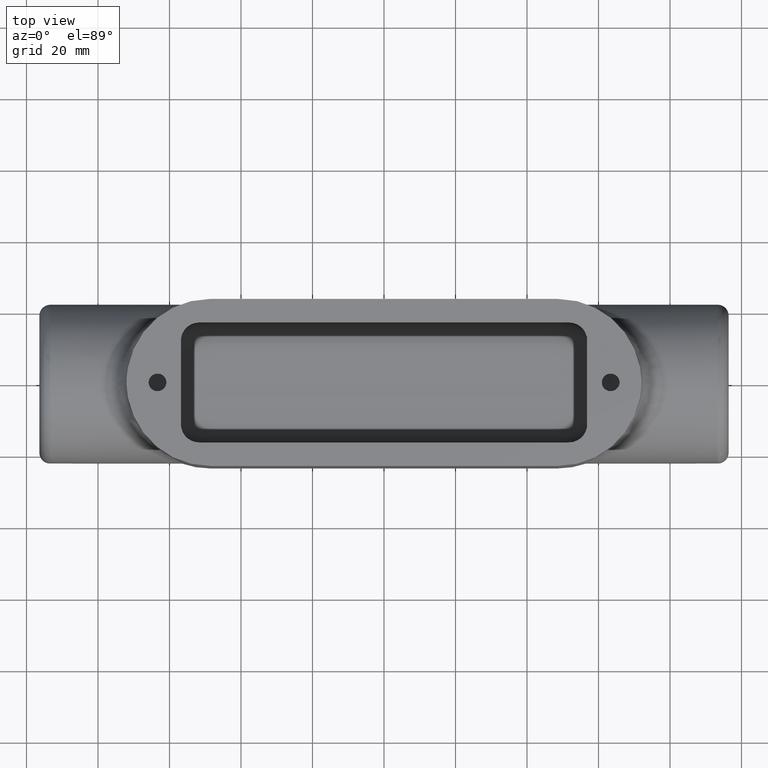
[diagram: clean part render]
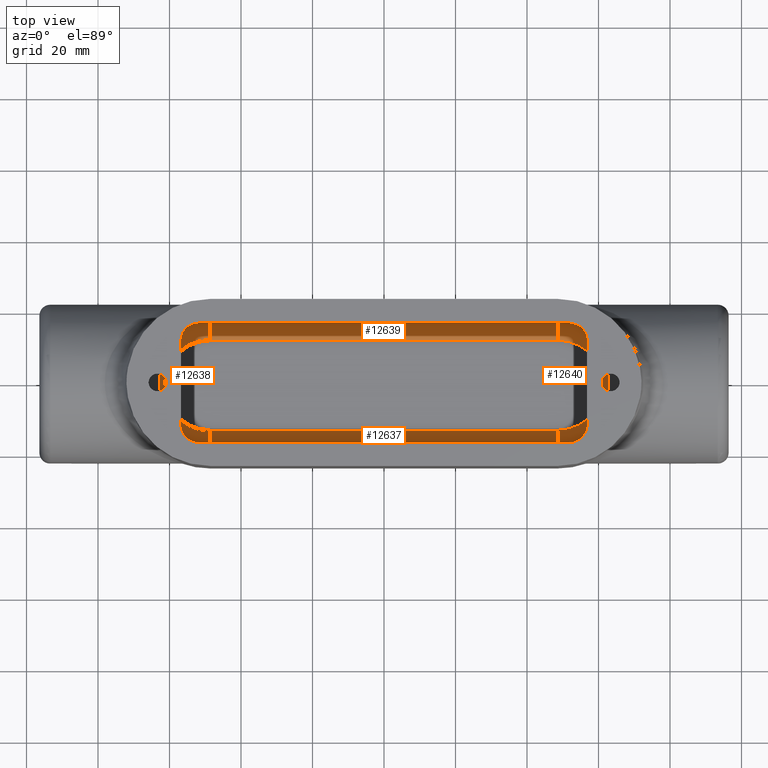
[diagram: same view with one multi-face feature highlighted, each face labeled with its STEP entity id]
A machine part, top view. The highlighted faces form ONE feature: a constant-radius fillet chain: 4 tangent blend faces with common blend radius 5.08 mm. The faces share edges in the B-rep.
Their STEP definitions:
[1] entity #12639 (Cylinder):
#449=LINE('',#18269,#1676);
#450=LINE('',#18270,#1677);
#1676=VECTOR('',#14105,0.393700787401575);
#1677=VECTOR('',#14106,0.393700787401575);
#4405=FACE_OUTER_BOUND('',#5105,.T.);
#5105=EDGE_LOOP('',(#9162,#9163,#9164,#9165));
#5886=CIRCLE('',#13398,0.2);
#5887=CIRCLE('',#13400,0.2);
#6002=VERTEX_POINT('',#17892);
#6017=VERTEX_POINT('',#18249);
#6020=VERTEX_POINT('',#18263);
#6021=VERTEX_POINT('',#18267);
#7266=EDGE_CURVE('',#6020,#6002,#5886,.T.);
#7267=EDGE_CURVE('',#6021,#6017,#5887,.T.);
#7268=EDGE_CURVE('',#6017,#6002,#449,.T.);
#7269=EDGE_CURVE('',#6020,#6021,#450,.T.);
#9162=ORIENTED_EDGE('',*,*,#7267,.T.);
#9163=ORIENTED_EDGE('',*,*,#7268,.T.);
#9164=ORIENTED_EDGE('',*,*,#7266,.F.);
#9165=ORIENTED_EDGE('',*,*,#7269,.T.);
#12563=CYLINDRICAL_SURFACE('',#13399,0.2);
#12639=ADVANCED_FACE('',(#4405),#12563,.F.);
#13398=AXIS2_PLACEMENT_3D('',#18265,#14099,#14100);
#13399=AXIS2_PLACEMENT_3D('',#18266,#14101,#14102);
#13400=AXIS2_PLACEMENT_3D('',#18268,#14103,#14104);
#14099=DIRECTION('center_axis',(1.,0.,0.));
#14100=DIRECTION('ref_axis',(0.,0.,-1.));
#14101=DIRECTION('center_axis',(1.,0.,0.));
#14102=DIRECTION('ref_axis',(0.,0.707106781186547,-0.707106781186547));
#14103=DIRECTION('center_axis',(1.,0.,0.));
#14104=DIRECTION('ref_axis',(0.,0.,-1.));
#14105=DIRECTION('',(-1.,0.,0.));
#14106=DIRECTION('',(1.,0.,0.));
#17892=CARTESIAN_POINT('',(-1.915,0.696,-0.560999999999999));
#18249=CARTESIAN_POINT('',(1.915,0.696,-0.560999999999999));
#18263=CARTESIAN_POINT('',(-1.915,0.496,-0.761));
#18265=CARTESIAN_POINT('Origin',(-1.915,0.496,-0.560999999999999));
#18266=CARTESIAN_POINT('Origin',(-0.9575,0.496,-0.560999999999999));
#18267=CARTESIAN_POINT('',(1.915,0.496,-0.761));
#18268=CARTESIAN_POINT('Origin',(1.915,0.496,-0.560999999999999));
#18269=CARTESIAN_POINT('',(-0.9575,0.696,-0.560999999999999));
#18270=CARTESIAN_POINT('',(-0.9575,0.496,-0.761));
[2] entity #12638 (Torus):
#433=TOROIDAL_SURFACE('',#13396,0.496,0.2);
#2920=B_SPLINE_CURVE_WITH_KNOTS('',3,(#17703,#17704,#17705,#17706,#17707,
#17708,#17709,#17710,#17711,#17712,#17713,#17714,#17715,#17716),
 .UNSPECIFIED.,.F.,.F.,(4,1,1,1,1,1,1,1,1,1,1,4),(0.,0.533242438808923,
1.06648487761785,1.33310609702231,1.59972731642677,1.86634853583123,2.13296975523569,
2.26628036493792,2.39959097464015,2.66621219404461,3.19945463285354,3.73269707166246),
 .UNSPECIFIED.);
#4404=FACE_OUTER_BOUND('',#5104,.T.);
#5104=EDGE_LOOP('',(#9156,#9157,#9158,#9159,#9160,#9161));
#5872=CIRCLE('',#13379,0.696);
#5874=CIRCLE('',#13381,0.696);
#5884=CIRCLE('',#13395,0.2);
#5885=CIRCLE('',#13397,0.496);
#5886=CIRCLE('',#13398,0.2);
#5995=VERTEX_POINT('',#17603);
#5999=VERTEX_POINT('',#17701);
#6002=VERTEX_POINT('',#17892);
#6005=VERTEX_POINT('',#17898);
#6019=VERTEX_POINT('',#18258);
#6020=VERTEX_POINT('',#18263);
#7231=EDGE_CURVE('',#5999,#5995,#2920,.T.);
#7238=EDGE_CURVE('',#6002,#5995,#5872,.T.);
#7242=EDGE_CURVE('',#5999,#6005,#5874,.T.);
#7263=EDGE_CURVE('',#6019,#6005,#5884,.T.);
#7265=EDGE_CURVE('',#6019,#6020,#5885,.T.);
#7266=EDGE_CURVE('',#6020,#6002,#5886,.T.);
#9156=ORIENTED_EDGE('',*,*,#7231,.F.);
#9157=ORIENTED_EDGE('',*,*,#7242,.T.);
#9158=ORIENTED_EDGE('',*,*,#7263,.F.);
#9159=ORIENTED_EDGE('',*,*,#7265,.T.);
#9160=ORIENTED_EDGE('',*,*,#7266,.T.);
#9161=ORIENTED_EDGE('',*,*,#7238,.T.);
#12638=ADVANCED_FACE('',(#4404),#433,.F.);
#13379=AXIS2_PLACEMENT_3D('',#17893,#14055,#14056);
#13381=AXIS2_PLACEMENT_3D('',#17900,#14061,#14062);
#13395=AXIS2_PLACEMENT_3D('',#18260,#14092,#14093);
#13396=AXIS2_PLACEMENT_3D('',#18262,#14095,#14096);
#13397=AXIS2_PLACEMENT_3D('',#18264,#14097,#14098);
#13398=AXIS2_PLACEMENT_3D('',#18265,#14099,#14100);
#14055=DIRECTION('center_axis',(0.,0.,1.));
#14056=DIRECTION('ref_axis',(-1.,-6.12323399573676E-17,0.));
#14061=DIRECTION('center_axis',(0.,0.,1.));
#14062=DIRECTION('ref_axis',(-1.,-6.12323399573676E-17,0.));
#14092=DIRECTION('center_axis',(-1.,0.,0.));
#14093=DIRECTION('ref_axis',(0.,0.,-1.));
#14095=DIRECTION('center_axis',(0.,0.,-1.));
#14096=DIRECTION('ref_axis',(-1.,0.,0.));
#14097=DIRECTION('center_axis',(0.,0.,-1.));
#14098=DIRECTION('ref_axis',(-1.,-6.12323399573677E-17,0.));
#14099=DIRECTION('center_axis',(1.,0.,0.));
#14100=DIRECTION('ref_axis',(0.,0.,-1.));
#17603=CARTESIAN_POINT('',(-2.37802879036096,0.519634813399629,-0.561));
#17701=CARTESIAN_POINT('',(-2.37802879036096,-0.519634813399629,-0.560999999999999));
#17703=CARTESIAN_POINT('Ctrl Pts',(-2.37802879036096,-0.519634813399629,
-0.561));
#17704=CARTESIAN_POINT('Ctrl Pts',(-2.41088238456691,-0.490360100482168,
-0.589882102970667));
#17705=CARTESIAN_POINT('Ctrl Pts',(-2.45986789857735,-0.417945291386486,
-0.650243062807991));
#17706=CARTESIAN_POINT('Ctrl Pts',(-2.48205498004786,-0.29660152173227,
-0.70754809269978));
#17707=CARTESIAN_POINT('Ctrl Pts',(-2.48199728167638,-0.186332067024363,
-0.73591375272042));
#17708=CARTESIAN_POINT('Ctrl Pts',(-2.47525823907331,-0.0978157329645878,
-0.748795140693938));
#17709=CARTESIAN_POINT('Ctrl Pts',(-2.46893896594453,-4.95900863676302E-5,
-0.753264456764752));
#17710=CARTESIAN_POINT('Ctrl Pts',(-2.47418477519518,0.0816297493786973,
-0.749529662604767));
#17711=CARTESIAN_POINT('Ctrl Pts',(-2.47872028788092,0.141913927287905,
-0.742359489911783));
#17712=CARTESIAN_POINT('Ctrl Pts',(-2.48198389178379,0.200228362492412,
-0.732354893643174));
#17713=CARTESIAN_POINT('Ctrl Pts',(-2.48211764840845,0.296479597601843,
-0.707496339808036));
#17714=CARTESIAN_POINT('Ctrl Pts',(-2.45986228779177,0.417998154131901,
-0.650330970604331));
#17715=CARTESIAN_POINT('Ctrl Pts',(-2.41088238456691,0.490360100482169,
-0.589882102970667));
#17716=CARTESIAN_POINT('Ctrl Pts',(-2.37802879036096,0.519634813399629,
-0.561));
#17892=CARTESIAN_POINT('',(-1.915,0.696,-0.560999999999999));
#17893=CARTESIAN_POINT('Origin',(-1.915,0.,-0.560999999999999));
#17898=CARTESIAN_POINT('',(-1.915,-0.696,-0.560999999999999));
#17900=CARTESIAN_POINT('Origin',(-1.915,0.,-0.560999999999999));
#18258=CARTESIAN_POINT('',(-1.915,-0.496,-0.761));
#18260=CARTESIAN_POINT('Origin',(-1.915,-0.496,-0.560999999999999));
#18262=CARTESIAN_POINT('Origin',(-1.915,0.,-0.560999999999999));
#18263=CARTESIAN_POINT('',(-1.915,0.496,-0.761));
#18264=CARTESIAN_POINT('Origin',(-1.915,0.,-0.761));
#18265=CARTESIAN_POINT('Origin',(-1.915,0.496,-0.560999999999999));
[3] entity #12637 (Cylinder):
#447=LINE('',#18259,#1674);
#448=LINE('',#18261,#1675);
#1674=VECTOR('',#14091,0.393700787401575);
#1675=VECTOR('',#14094,0.393700787401575);
#4403=FACE_OUTER_BOUND('',#5103,.T.);
#5103=EDGE_LOOP('',(#9152,#9153,#9154,#9155));
#5883=CIRCLE('',#13394,0.2);
#5884=CIRCLE('',#13395,0.2);
#6005=VERTEX_POINT('',#17898);
#6014=VERTEX_POINT('',#18243);
#6018=VERTEX_POINT('',#18256);
#6019=VERTEX_POINT('',#18258);
#7261=EDGE_CURVE('',#6014,#6018,#5883,.T.);
#7262=EDGE_CURVE('',#6018,#6019,#447,.T.);
#7263=EDGE_CURVE('',#6019,#6005,#5884,.T.);
#7264=EDGE_CURVE('',#6005,#6014,#448,.T.);
#9152=ORIENTED_EDGE('',*,*,#7261,.T.);
#9153=ORIENTED_EDGE('',*,*,#7262,.T.);
#9154=ORIENTED_EDGE('',*,*,#7263,.T.);
#9155=ORIENTED_EDGE('',*,*,#7264,.T.);
#12562=CYLINDRICAL_SURFACE('',#13393,0.2);
#12637=ADVANCED_FACE('',(#4403),#12562,.F.);
#13393=AXIS2_PLACEMENT_3D('',#18255,#14087,#14088);
#13394=AXIS2_PLACEMENT_3D('',#18257,#14089,#14090);
#13395=AXIS2_PLACEMENT_3D('',#18260,#14092,#14093);
#14087=DIRECTION('center_axis',(-1.,0.,0.));
#14088=DIRECTION('ref_axis',(0.,-0.707106781186547,-0.707106781186547));
#14089=DIRECTION('center_axis',(1.,0.,0.));
#14090=DIRECTION('ref_axis',(0.,-1.,0.));
#14091=DIRECTION('',(-1.,0.,0.));
#14092=DIRECTION('center_axis',(-1.,0.,0.));
#14093=DIRECTION('ref_axis',(0.,0.,-1.));
#14094=DIRECTION('',(1.,0.,0.));
#17898=CARTESIAN_POINT('',(-1.915,-0.696,-0.560999999999999));
#18243=CARTESIAN_POINT('',(1.915,-0.696,-0.560999999999999));
#18255=CARTESIAN_POINT('Origin',(0.9575,-0.496,-0.560999999999999));
#18256=CARTESIAN_POINT('',(1.915,-0.496,-0.761));
#18257=CARTESIAN_POINT('Origin',(1.915,-0.496,-0.560999999999999));
#18258=CARTESIAN_POINT('',(-1.915,-0.496,-0.761));
#18259=CARTESIAN_POINT('',(0.9575,-0.496,-0.761));
#18260=CARTESIAN_POINT('Origin',(-1.915,-0.496,-0.560999999999999));
#18261=CARTESIAN_POINT('',(0.9575,-0.696,-0.560999999999999));
[4] entity #12640 (Torus):
#434=TOROIDAL_SURFACE('',#13401,0.496,0.2);
#2928=B_SPLINE_CURVE_WITH_KNOTS('',3,(#18064,#18065,#18066,#18067,#18068,
#18069,#18070,#18071,#18072,#18073,#18074,#18075,#18076,#18077),
 .UNSPECIFIED.,.F.,.F.,(4,1,1,1,1,1,1,1,1,1,1,4),(0.,0.533242438808923,
1.06648487761785,1.33310609702231,1.46641670672454,1.59972731642677,1.86634853583123,
1.99965914553346,2.13296975523569,2.66621219404462,3.19945463285354,3.73269707166246),
 .UNSPECIFIED.);
#4406=FACE_OUTER_BOUND('',#5106,.T.);
#5106=EDGE_LOOP('',(#9166,#9167,#9168,#9169,#9170,#9171));
#5879=CIRCLE('',#13387,0.696);
#5881=CIRCLE('',#13389,0.696);
#5883=CIRCLE('',#13394,0.2);
#5887=CIRCLE('',#13400,0.2);
#5888=CIRCLE('',#13402,0.496);
#6007=VERTEX_POINT('',#17962);
#6011=VERTEX_POINT('',#18062);
#6014=VERTEX_POINT('',#18243);
#6017=VERTEX_POINT('',#18249);
#6018=VERTEX_POINT('',#18256);
#6021=VERTEX_POINT('',#18267);
#7249=EDGE_CURVE('',#6011,#6007,#2928,.T.);
#7255=EDGE_CURVE('',#6014,#6007,#5879,.T.);
#7259=EDGE_CURVE('',#6011,#6017,#5881,.T.);
#7261=EDGE_CURVE('',#6014,#6018,#5883,.T.);
#7267=EDGE_CURVE('',#6021,#6017,#5887,.T.);
#7270=EDGE_CURVE('',#6021,#6018,#5888,.T.);
#9166=ORIENTED_EDGE('',*,*,#7249,.F.);
#9167=ORIENTED_EDGE('',*,*,#7259,.T.);
#9168=ORIENTED_EDGE('',*,*,#7267,.F.);
#9169=ORIENTED_EDGE('',*,*,#7270,.T.);
#9170=ORIENTED_EDGE('',*,*,#7261,.F.);
#9171=ORIENTED_EDGE('',*,*,#7255,.T.);
#12640=ADVANCED_FACE('',(#4406),#434,.F.);
#13387=AXIS2_PLACEMENT_3D('',#18244,#14073,#14074);
#13389=AXIS2_PLACEMENT_3D('',#18251,#14079,#14080);
#13394=AXIS2_PLACEMENT_3D('',#18257,#14089,#14090);
#13400=AXIS2_PLACEMENT_3D('',#18268,#14103,#14104);
#13401=AXIS2_PLACEMENT_3D('',#18271,#14107,#14108);
#13402=AXIS2_PLACEMENT_3D('',#18272,#14109,#14110);
#14073=DIRECTION('center_axis',(0.,0.,1.));
#14074=DIRECTION('ref_axis',(1.,6.12323399573676E-17,0.));
#14079=DIRECTION('center_axis',(0.,0.,1.));
#14080=DIRECTION('ref_axis',(1.,6.12323399573676E-17,0.));
#14089=DIRECTION('center_axis',(1.,0.,0.));
#14090=DIRECTION('ref_axis',(0.,-1.,0.));
#14103=DIRECTION('center_axis',(1.,0.,0.));
#14104=DIRECTION('ref_axis',(0.,0.,-1.));
#14107=DIRECTION('center_axis',(0.,0.,-1.));
#14108=DIRECTION('ref_axis',(-1.,0.,0.));
#14109=DIRECTION('center_axis',(0.,0.,-1.));
#14110=DIRECTION('ref_axis',(1.,6.12323399573677E-17,0.));
#17962=CARTESIAN_POINT('',(2.37802879036096,-0.519634813399629,-0.561));
#18062=CARTESIAN_POINT('',(2.37802879036096,0.519634813399629,-0.561));
#18064=CARTESIAN_POINT('Ctrl Pts',(2.37802879036096,0.519634813399629,-0.561));
#18065=CARTESIAN_POINT('Ctrl Pts',(2.41088238456691,0.490360100482168,-0.589882102970667));
#18066=CARTESIAN_POINT('Ctrl Pts',(2.45983983988992,0.417995516745339,-0.65024351650324));
#18067=CARTESIAN_POINT('Ctrl Pts',(2.48212422269797,0.296471555615287,-0.707539059292076));
#18068=CARTESIAN_POINT('Ctrl Pts',(2.48196757184804,0.20017438907585,-0.732362318488744));
#18069=CARTESIAN_POINT('Ctrl Pts',(2.47871695640955,0.141903091694187,-0.742367845977831));
#18070=CARTESIAN_POINT('Ctrl Pts',(2.47413011185175,0.0814914996832273,
-0.749532686682492));
#18071=CARTESIAN_POINT('Ctrl Pts',(2.47006633598081,0.0164980653180379,
-0.752519792726349));
#18072=CARTESIAN_POINT('Ctrl Pts',(2.47198905126519,-0.0491864725557659,
-0.751030559388101));
#18073=CARTESIAN_POINT('Ctrl Pts',(2.47887559565233,-0.143768953362811,
-0.744431595396478));
#18074=CARTESIAN_POINT('Ctrl Pts',(2.48700188838675,-0.272033809150684,
-0.718994394804263));
#18075=CARTESIAN_POINT('Ctrl Pts',(2.45964677051069,-0.418050544546874,
-0.650265071224067));
#18076=CARTESIAN_POINT('Ctrl Pts',(2.41088238456691,-0.490360100482169,
-0.589882102970667));
#18077=CARTESIAN_POINT('Ctrl Pts',(2.37802879036096,-0.519634813399629,
-0.561));
#18243=CARTESIAN_POINT('',(1.915,-0.696,-0.560999999999999));
#18244=CARTESIAN_POINT('Origin',(1.915,0.,-0.560999999999999));
#18249=CARTESIAN_POINT('',(1.915,0.696,-0.560999999999999));
#18251=CARTESIAN_POINT('Origin',(1.915,0.,-0.560999999999999));
#18256=CARTESIAN_POINT('',(1.915,-0.496,-0.761));
#18257=CARTESIAN_POINT('Origin',(1.915,-0.496,-0.560999999999999));
#18267=CARTESIAN_POINT('',(1.915,0.496,-0.761));
#18268=CARTESIAN_POINT('Origin',(1.915,0.496,-0.560999999999999));
#18271=CARTESIAN_POINT('Origin',(1.915,0.,-0.560999999999999));
#18272=CARTESIAN_POINT('Origin',(1.915,0.,-0.761));